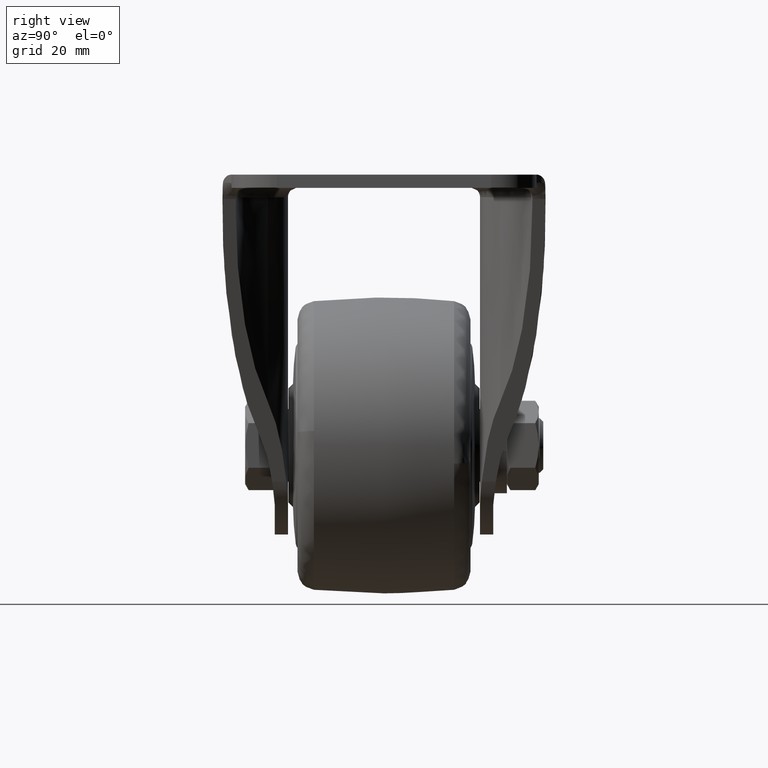
[diagram: clean part render]
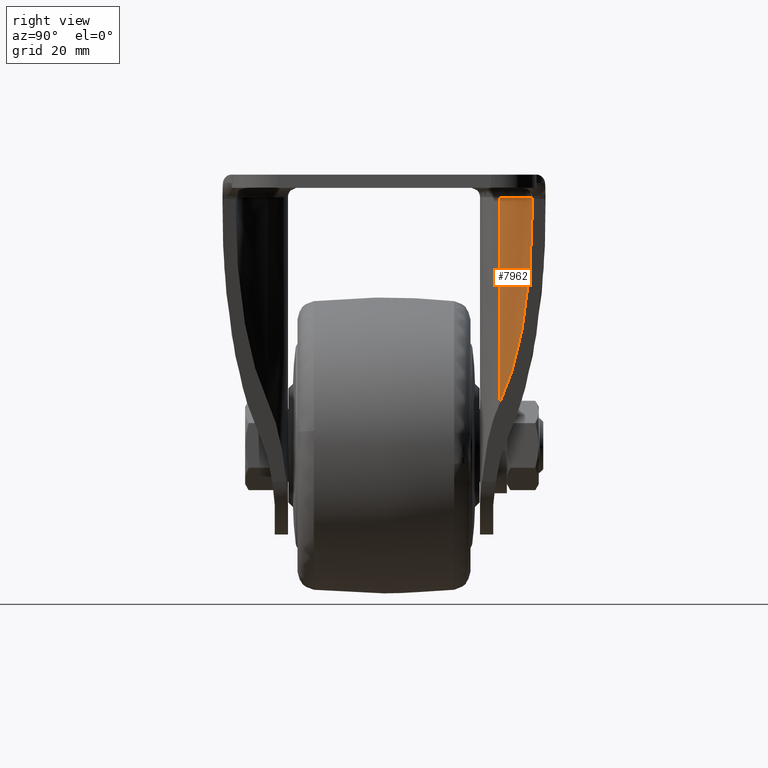
[diagram: same view with one face highlighted and labeled with its STEP entity id]
A machine part, right view. The second image highlights one B-rep face of the part: STEP entity #7962.
In plain terms, the highlighted face is a freeform B-spline surface patch.
Its self-contained STEP definition (entity closure, byte-faithful):
#6499=CARTESIAN_POINT('',(21.080107333667101,25.512244897959199,-5.0));
#6500=VERTEX_POINT('',#6499);
#6556=CARTESIAN_POINT('',(34.125979706377450,32.597981486910903,-5.0));
#6557=VERTEX_POINT('',#6556);
#6587=CARTESIAN_POINT('',(34.125979706377457,32.597981486910911,-5.0));
#6588=CARTESIAN_POINT('',(25.603071436957201,32.737352888634490,-5.0));
#6589=CARTESIAN_POINT('',(21.080107333667069,25.512244897959221,-5.0));
#6597=(BOUNDED_CURVE()B_SPLINE_CURVE(2,(#6587,#6588,#6589),.UNSPECIFIED.,.F.,.U.)CURVE()GEOMETRIC_REPRESENTATION_ITEM()QUASI_UNIFORM_CURVE()RATIONAL_B_SPLINE_CURVE((1.0,0.870827909017601,1.0))REPRESENTATION_ITEM(''));
#6598=EDGE_CURVE('',#6557,#6500,#6597,.T.);
#7123=CARTESIAN_POINT('',(34.125979706377450,32.597981486910903,-6.970446334367610));
#7124=VERTEX_POINT('',#7123);
#7130=CARTESIAN_POINT('',(21.080107333667101,25.512244897959199,-49.956885919186902));
#7131=VERTEX_POINT('',#7130);
#7132=CARTESIAN_POINT('',(34.125979706377450,32.597981486910903,-6.970446334367610));
#7133=CARTESIAN_POINT('',(25.603071436957240,32.737352888634582,-35.053618616258575));
#7134=CARTESIAN_POINT('',(21.080107333667069,25.512244897959199,-49.956885919186831));
#7142=(BOUNDED_CURVE()B_SPLINE_CURVE(2,(#7132,#7133,#7134),.UNSPECIFIED.,.F.,.U.)CURVE()GEOMETRIC_REPRESENTATION_ITEM()QUASI_UNIFORM_CURVE()RATIONAL_B_SPLINE_CURVE((1.0,0.870827909017598,1.0))REPRESENTATION_ITEM(''));
#7143=EDGE_CURVE('',#7124,#7131,#7142,.T.);
#7922=CARTESIAN_POINT('',(21.080107333667101,25.512244897959199,-49.956885919186902));
#7923=CARTESIAN_POINT('',(21.080107333667101,25.512244897959199,-5.0));
#7924=QUASI_UNIFORM_CURVE('',1,(#7922,#7923),.UNSPECIFIED.,.F.,.U.);
#7925=EDGE_CURVE('',#7131,#6500,#7924,.T.);
#7938=CARTESIAN_POINT('',(20.860049616262788,25.149484526731140,-51.080808067166579));
#7939=CARTESIAN_POINT('',(20.860049616262788,25.149484526731140,-3.847979798320837));
#7940=CARTESIAN_POINT('',(25.576593167099478,33.176805325783064,-51.080808067166579));
#7941=CARTESIAN_POINT('',(25.576593167099478,33.176805325783064,-3.847979798320837));
#7942=CARTESIAN_POINT('',(34.867049898347538,32.567645246133722,-51.080808067166586));
#7943=CARTESIAN_POINT('',(34.867049898347538,32.567645246133722,-3.847979798320837));
#7951=(BOUNDED_SURFACE()B_SPLINE_SURFACE(1,2,((#7938,#7940,#7942),(#7939,#7941,#7943)),.UNSPECIFIED.,.F.,.F.,.U.)B_SPLINE_SURFACE_WITH_KNOTS((2,2),(3,3),(0.0,47.232828268845743),(0.0,17.124013884370431),.UNSPECIFIED.)GEOMETRIC_REPRESENTATION_ITEM()RATIONAL_B_SPLINE_SURFACE(((1.0,0.847660483717926,0.991694666069560),(1.0,0.847660483717926,0.991694666069560)))REPRESENTATION_ITEM('')SURFACE());
#7952=CARTESIAN_POINT('',(34.125979706377450,32.597981486910903,-6.970446334367610));
#7953=CARTESIAN_POINT('',(34.125979706377450,32.597981486910903,-5.0));
#7954=QUASI_UNIFORM_CURVE('',1,(#7952,#7953),.UNSPECIFIED.,.F.,.U.);
#7955=EDGE_CURVE('',#7124,#6557,#7954,.T.);
#7956=ORIENTED_EDGE('',*,*,#7955,.T.);
#7957=ORIENTED_EDGE('',*,*,#6598,.T.);
#7958=ORIENTED_EDGE('',*,*,#7925,.F.);
#7959=ORIENTED_EDGE('',*,*,#7143,.F.);
#7960=EDGE_LOOP('',(#7956,#7957,#7958,#7959));
#7961=FACE_OUTER_BOUND('',#7960,.T.);
#7962=ADVANCED_FACE('',(#7961),#7951,.F.);